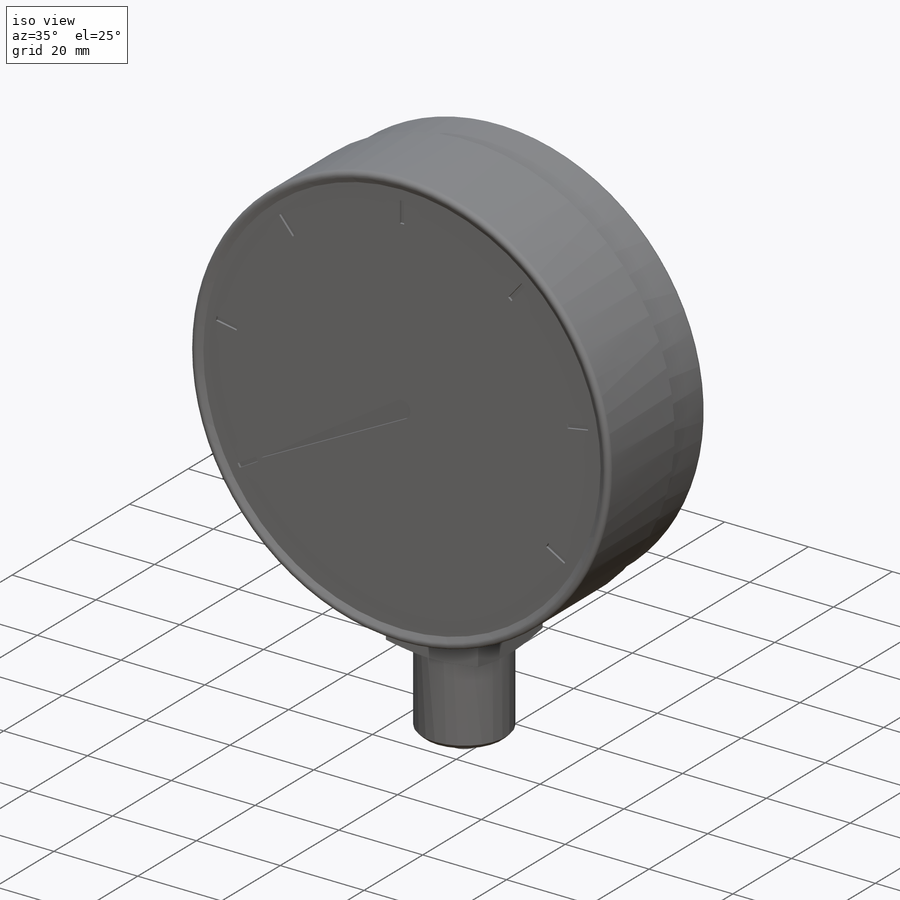
[diagram: iso view]
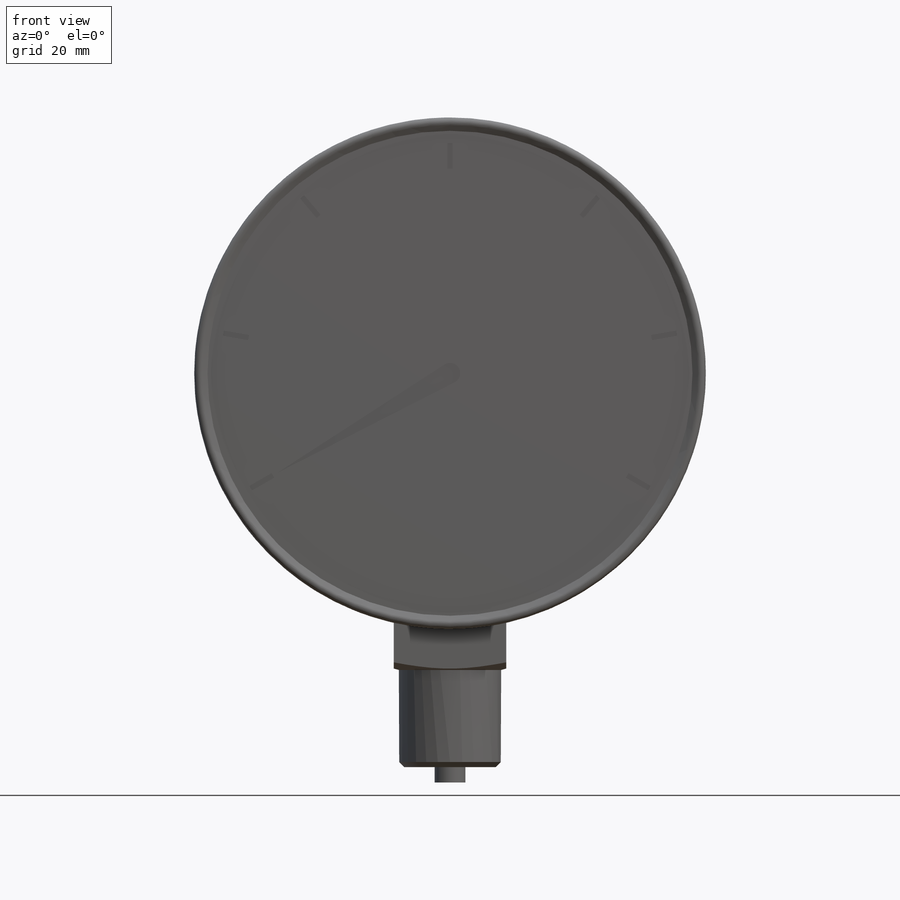
[diagram: front view]
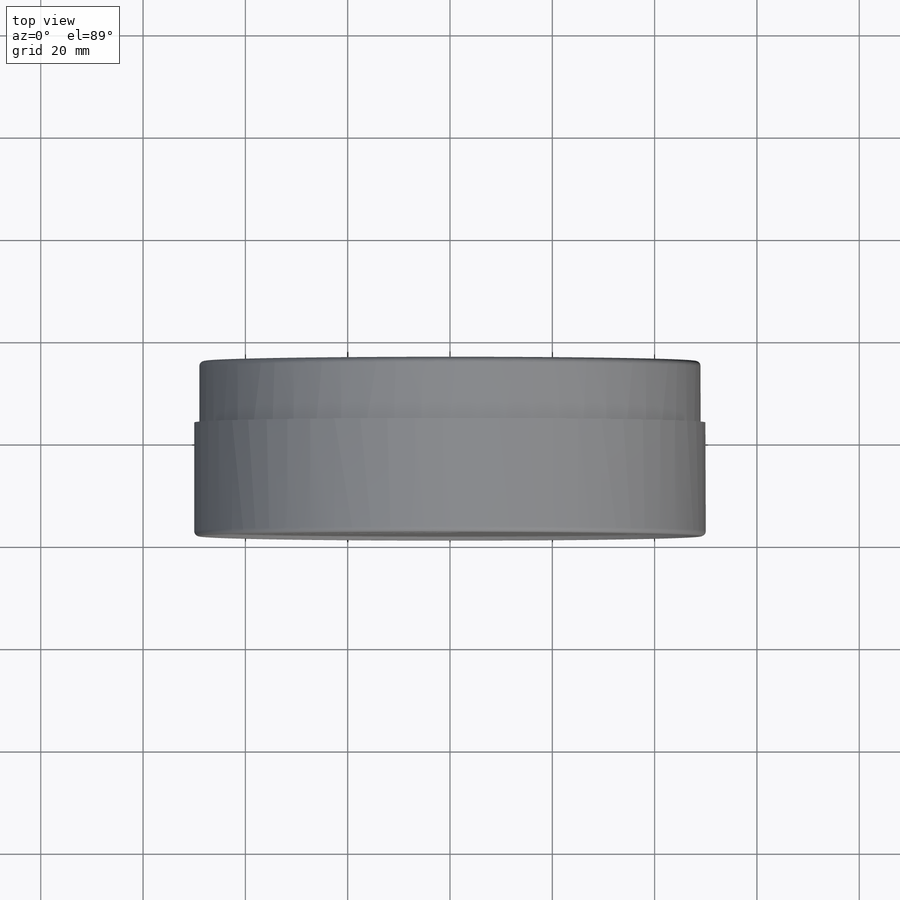
[diagram: top view]
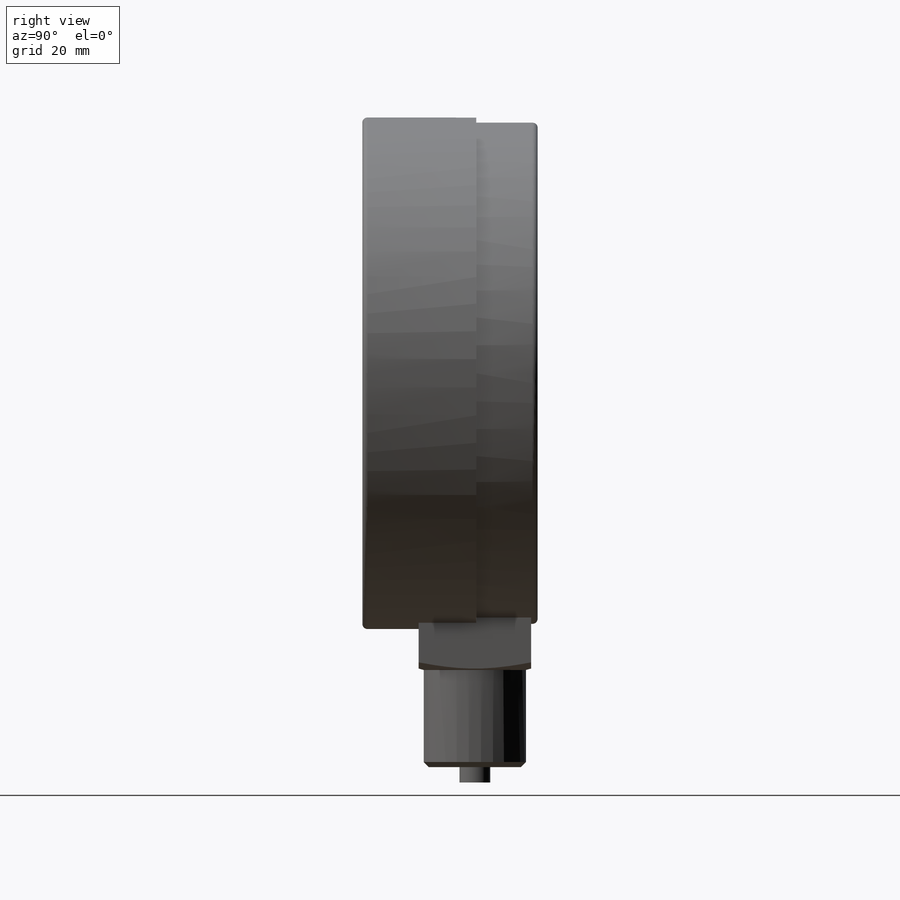
[diagram: right view]
SOLIDWORKS PART (.sldprt)
format: sldprt  version: not decoded by parser v0  size: 396,288 bytes
history: native  units: mm
features: sketch x5, plane x3, cut_extrude x2, material x1, revolve x1, fillet x1, pattern_circular x1, extrude x1, cut_revolve x1, chamfer x1 + 1 further entry (+8 scaffold rows collapsed)
feature tree (26):
  scaffold x8  (default folders/planes/origin — collapsed)
  material  "Materiál <není určen>"
  "Těla ploch"
  plane  "Horní"
  plane  "Přední"
  plane  "Pravá"
  sketch  "Skica1"  dims[c1.D1=5.8mm c1.D2=100.0mm c1.D3=80.0mm c1.D4=~16.036582mm c1.D5=181.0mm c1.D6=~15.065686mm c2.D6=45.0deg c2.D7=20.0mm c2.D8=1.5mm c2.D9=1.5mm c3.D7=~2.12132mm c4.D7=30.0deg c4.D9=35.0mm c4.D10=20.8mm c4.D11=33.0mm c4.D4=98.0mm c4.D12=23.0mm c4.D3=2.7mm c4.D5=33.0mm c4.D6=16.2mm c5.D11=2.3mm c6.D11=45.0deg c6.D13=2.7mm]
  revolve  "Rotovat1"  Angle=360deg
  fillet  "Zaoblit1"  Radius=1mm
  sketch  "Skica2"  dims[c1.D1=~17.612399mm c2.D1=120.0deg c2.D2=1.0mm c2.D3=5.0mm c2.D4=~45.002778mm c3.D1=45.0mm c3.D5=~40.003125mm]
  cut_extrude  "Odebrat vysunutím1"  Depth=0.5mm
  pattern_circular  "Kruhové pole1"  Count=9 Angle=360deg
  sketch  "Skica3"  dims[D1=2.0mm D2=39.0mm]
  cut_extrude  "Odebrat vysunutím2"  Depth=0.5mm
  sketch  "Skica4"  dims[D1=11.0mm D2=22.0mm]
  extrude  "Přidat vysunutím1"  Depth=80mm
  sketch  "Skica5"  dims[c1.D1=3.0mm c1.D2=6.0mm c1.D3=23.0mm c1.D4=20.0mm c1.D5=20.0mm c1.D6=21.0mm c2.D6=15.0deg c2.D1=22.0mm c2.D3=3.0mm c2.D5=20.0mm c3.D6=21.0mm c4.D6=15.0deg]
  cut_revolve  "Odebrat rotací1"  Angle=360deg
  chamfer  "Zkosení1"  Distance=1mm Angle=45deg
decode coverage: 13 of 13 modeling features carry decoded parameters; 1 rows unclassified (native names shown)
note: ~ marks probable driven/reference dimensions
note: suppression state not decoded; provenance and decode notes live in map.json
